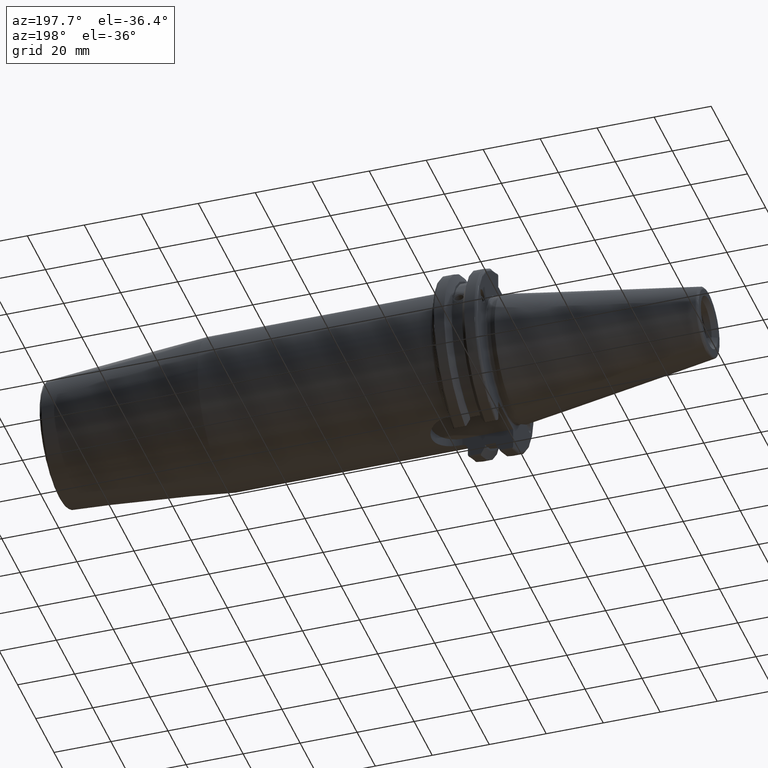
[diagram: clean part render]
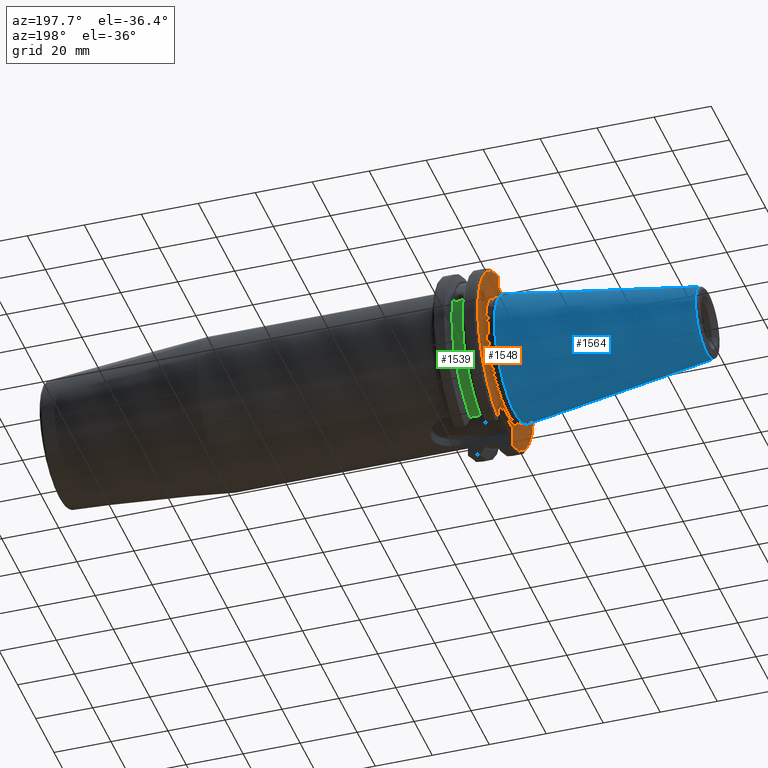
[diagram: same view with three faces highlighted in distinct colors, each labeled with its STEP entity id]
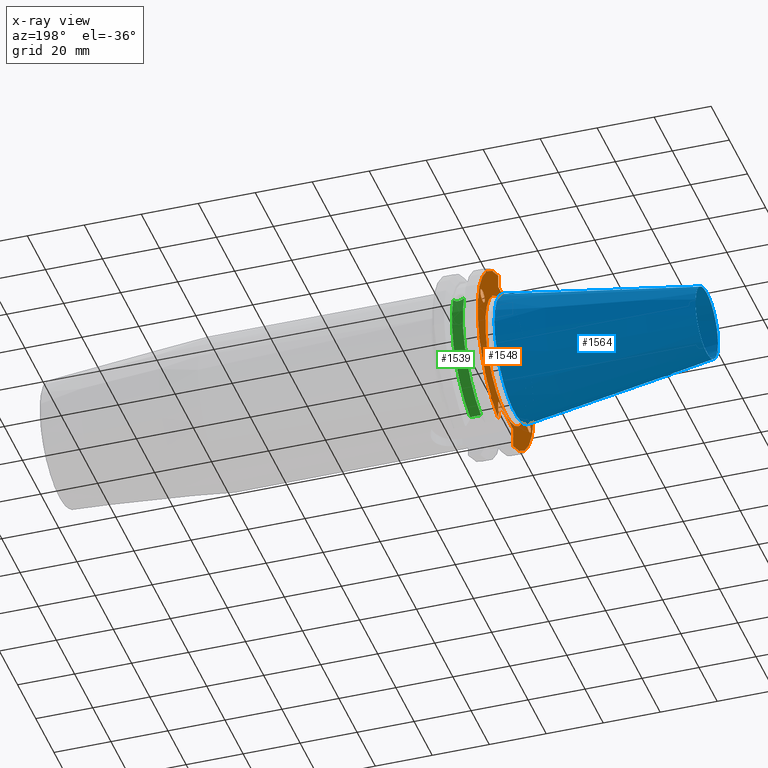
[diagram: x-ray of the same camera — body ghosted, the three highlighted faces saturated]
A machine part, auxiliary view with three faces highlighted in distinct colors.
The next image is the same camera in x-ray (body ghosted, the three faces saturated) — at least one of them is partly hidden behind the body in this view.
Their STEP definitions:

[orange] entity #1548 — the highlighted planar face has unit normal (-1, 0, 0).
#39=ELLIPSE('',#1674,2.44154917752292,2.00000000000001);
#48=ELLIPSE('',#1717,2.44154917752292,2.00000000000001);
#58=FACE_BOUND('',#263,.T.);
#59=FACE_BOUND('',#264,.T.);
#60=FACE_BOUND('',#265,.T.);
#77=PLANE('',#1727);
#166=FACE_OUTER_BOUND('',#262,.T.);
#262=EDGE_LOOP('',(#1238,#1239,#1240,#1241,#1242,#1243,#1244,#1245));
#263=EDGE_LOOP('',(#1246));
#264=EDGE_LOOP('',(#1247));
#265=EDGE_LOOP('',(#1248));
#358=CIRCLE('',#1725,22.3);
#360=CIRCLE('',#1728,30.75);
#361=CIRCLE('',#1729,30.75);
#432=LINE('',#2832,#518);
#433=LINE('',#2836,#519);
#434=LINE('',#2838,#520);
#435=LINE('',#2840,#521);
#436=LINE('',#2844,#522);
#437=LINE('',#2845,#523);
#518=VECTOR('',#2074,10.);
#519=VECTOR('',#2077,10.);
#520=VECTOR('',#2078,10.);
#521=VECTOR('',#2079,10.);
#522=VECTOR('',#2082,10.);
#523=VECTOR('',#2083,10.);
#662=VERTEX_POINT('',#2627);
#702=VERTEX_POINT('',#2810);
#707=VERTEX_POINT('',#2825);
#708=VERTEX_POINT('',#2830);
#709=VERTEX_POINT('',#2831);
#710=VERTEX_POINT('',#2833);
#711=VERTEX_POINT('',#2835);
#712=VERTEX_POINT('',#2837);
#713=VERTEX_POINT('',#2839);
#714=VERTEX_POINT('',#2841);
#715=VERTEX_POINT('',#2843);
#842=EDGE_CURVE('',#662,#662,#39,.T.);
#898=EDGE_CURVE('',#702,#702,#48,.T.);
#905=EDGE_CURVE('',#707,#707,#358,.T.);
#907=EDGE_CURVE('',#708,#709,#432,.T.);
#908=EDGE_CURVE('',#710,#709,#360,.T.);
#909=EDGE_CURVE('',#710,#711,#433,.T.);
#910=EDGE_CURVE('',#711,#712,#434,.T.);
#911=EDGE_CURVE('',#712,#713,#435,.T.);
#912=EDGE_CURVE('',#714,#713,#361,.T.);
#913=EDGE_CURVE('',#714,#715,#436,.T.);
#914=EDGE_CURVE('',#715,#708,#437,.T.);
#1238=ORIENTED_EDGE('',*,*,#907,.T.);
#1239=ORIENTED_EDGE('',*,*,#908,.F.);
#1240=ORIENTED_EDGE('',*,*,#909,.T.);
#1241=ORIENTED_EDGE('',*,*,#910,.T.);
#1242=ORIENTED_EDGE('',*,*,#911,.T.);
#1243=ORIENTED_EDGE('',*,*,#912,.F.);
#1244=ORIENTED_EDGE('',*,*,#913,.T.);
#1245=ORIENTED_EDGE('',*,*,#914,.T.);
#1246=ORIENTED_EDGE('',*,*,#842,.T.);
#1247=ORIENTED_EDGE('',*,*,#898,.T.);
#1248=ORIENTED_EDGE('',*,*,#905,.F.);
#1548=ADVANCED_FACE('',(#166,#58,#59,#60),#77,.T.);
#1674=AXIS2_PLACEMENT_3D('',#2629,#1947,#1948);
#1717=AXIS2_PLACEMENT_3D('',#2812,#2050,#2051);
#1725=AXIS2_PLACEMENT_3D('',#2827,#2068,#2069);
#1727=AXIS2_PLACEMENT_3D('',#2829,#2072,#2073);
#1728=AXIS2_PLACEMENT_3D('',#2834,#2075,#2076);
#1729=AXIS2_PLACEMENT_3D('',#2842,#2080,#2081);
#1947=DIRECTION('center_axis',(1.,0.,0.));
#1948=DIRECTION('ref_axis',(5.68400912649E-17,-0.939692620785909,-0.342020143325667));
#2050=DIRECTION('center_axis',(1.,0.,0.));
#2051=DIRECTION('ref_axis',(5.68400912649E-17,0.939692620785909,0.342020143325667));
#2068=DIRECTION('center_axis',(-1.,0.,0.));
#2069=DIRECTION('ref_axis',(0.,-1.,1.83697019872103E-16));
#2072=DIRECTION('center_axis',(-1.,0.,0.));
#2073=DIRECTION('ref_axis',(0.,0.,1.));
#2074=DIRECTION('',(0.,0.,1.));
#2075=DIRECTION('center_axis',(1.,0.,0.));
#2076=DIRECTION('ref_axis',(0.,1.,1.60812264967664E-16));
#2077=DIRECTION('',(0.,0.,1.));
#2078=DIRECTION('',(0.,-1.,0.));
#2079=DIRECTION('',(0.,0.,-1.));
#2080=DIRECTION('center_axis',(1.,0.,0.));
#2081=DIRECTION('ref_axis',(0.,-1.,1.60812264967664E-16));
#2082=DIRECTION('',(0.,0.,-1.));
#2083=DIRECTION('',(0.,1.,0.));
#2627=CARTESIAN_POINT('',(3.175,-23.0773950158153,-8.39948487016));
#2629=CARTESIAN_POINT('Origin',(3.175,-25.3717007612195,-9.23454386979305));
#2810=CARTESIAN_POINT('',(3.175,23.0773950158153,8.39948487016));
#2812=CARTESIAN_POINT('Origin',(3.175,25.3717007612195,9.23454386979306));
#2825=CARTESIAN_POINT('',(3.175,-2.7309623620986E-15,22.3));
#2827=CARTESIAN_POINT('Origin',(3.175,0.,0.));
#2829=CARTESIAN_POINT('Origin',(3.175,31.75,0.));
#2830=CARTESIAN_POINT('',(3.175,8.18999999999999,25.));
#2831=CARTESIAN_POINT('',(3.175,8.19,29.6392712461019));
#2832=CARTESIAN_POINT('',(3.175,8.19,12.5));
#2833=CARTESIAN_POINT('',(3.175,8.18999999999999,-29.6392712461019));
#2834=CARTESIAN_POINT('Origin',(3.175,0.,0.));
#2835=CARTESIAN_POINT('',(3.175,8.19000000000001,-22.6));
#2836=CARTESIAN_POINT('',(3.175,8.19000000000001,-11.3));
#2837=CARTESIAN_POINT('',(3.175,-8.19,-22.6));
#2838=CARTESIAN_POINT('',(3.175,15.875,-22.6));
#2839=CARTESIAN_POINT('',(3.175,-8.19,-29.6392712461019));
#2840=CARTESIAN_POINT('',(3.175,-8.19,-11.3));
#2841=CARTESIAN_POINT('',(3.175,-8.18999999999999,29.6392712461019));
#2842=CARTESIAN_POINT('Origin',(3.175,0.,0.));
#2843=CARTESIAN_POINT('',(3.175,-8.19000000000001,25.));
#2844=CARTESIAN_POINT('',(3.175,-8.19000000000001,12.5));
#2845=CARTESIAN_POINT('',(3.175,15.875,25.));

[blue] entity #1564 — the highlighted conical surface has half-angle 8.297 deg.
#105=CONICAL_SURFACE('',#1756,17.2484375,0.144812498238939);
#182=FACE_OUTER_BOUND('',#282,.T.);
#282=EDGE_LOOP('',(#1352,#1353,#1354,#1355,#1356));
#368=CIRCLE('',#1750,12.3966635780937);
#369=CIRCLE('',#1751,12.3966635780937);
#373=CIRCLE('',#1757,22.225);
#455=LINE('',#3052,#541);
#541=VECTOR('',#2157,17.2484375);
#742=VERTEX_POINT('',#3039);
#743=VERTEX_POINT('',#3040);
#746=VERTEX_POINT('',#3050);
#960=EDGE_CURVE('',#742,#743,#368,.T.);
#961=EDGE_CURVE('',#743,#742,#369,.T.);
#965=EDGE_CURVE('',#746,#746,#373,.T.);
#966=EDGE_CURVE('',#746,#743,#455,.T.);
#1352=ORIENTED_EDGE('',*,*,#965,.F.);
#1353=ORIENTED_EDGE('',*,*,#966,.T.);
#1354=ORIENTED_EDGE('',*,*,#960,.F.);
#1355=ORIENTED_EDGE('',*,*,#961,.F.);
#1356=ORIENTED_EDGE('',*,*,#966,.F.);
#1564=ADVANCED_FACE('',(#182),#105,.T.);
#1750=AXIS2_PLACEMENT_3D('',#3041,#2141,#2142);
#1751=AXIS2_PLACEMENT_3D('',#3042,#2143,#2144);
#1756=AXIS2_PLACEMENT_3D('',#3049,#2153,#2154);
#1757=AXIS2_PLACEMENT_3D('',#3051,#2155,#2156);
#2141=DIRECTION('center_axis',(-1.,0.,0.));
#2142=DIRECTION('ref_axis',(0.,-1.,3.06161699786838E-17));
#2143=DIRECTION('center_axis',(-1.,0.,0.));
#2144=DIRECTION('ref_axis',(0.,-1.,3.06161699786838E-17));
#2153=DIRECTION('center_axis',(1.,0.,0.));
#2154=DIRECTION('ref_axis',(0.,1.,0.));
#2155=DIRECTION('center_axis',(1.,0.,0.));
#2156=DIRECTION('ref_axis',(0.,0.,-1.));
#2157=DIRECTION('',(-0.989532981063282,0.144306893071729,1.76724974695192E-17));
#3039=CARTESIAN_POINT('',(-67.3943068930717,-1.5181534371019E-15,12.3966635780937));
#3040=CARTESIAN_POINT('',(-67.3943068930718,-12.3966635780937,-1.5181534371019E-15));
#3041=CARTESIAN_POINT('Origin',(-67.3943068930717,0.,-1.89769179637738E-15));
#3042=CARTESIAN_POINT('Origin',(-67.3943068930717,0.,-1.89769179637738E-15));
#3049=CARTESIAN_POINT('Origin',(-34.125,0.,0.));
#3050=CARTESIAN_POINT('',(0.,-22.225,-2.72177751110499E-15));
#3051=CARTESIAN_POINT('Origin',(0.,0.,0.));
#3052=CARTESIAN_POINT('',(-34.125,-17.2484375,-2.11232437746682E-15));

[green] entity #1539 — the highlighted cylindrical surface (partial cylindrical patch) has radius 28.15 mm, axis along (1, 0, 0).
#157=FACE_OUTER_BOUND('',#252,.T.);
#252=EDGE_LOOP('',(#1202,#1203,#1204,#1205));
#349=CIRCLE('',#1706,28.15);
#350=CIRCLE('',#1708,28.15);
#425=LINE('',#2794,#511);
#511=VECTOR('',#2029,10.);
#579=B_SPLINE_CURVE_WITH_KNOTS('',3,(#2705,#2706,#2707,#2708,#2709,#2710,
#2711,#2712,#2713,#2714,#2715,#2716,#2717,#2718),.UNSPECIFIED.,.F.,.F.,
(4,2,2,2,2,2,4),(0.401639126382403,0.474814416953736,0.553950208498303,
0.63308600004287,0.712221791587437,0.791357583132004,0.864532873703335),
 .UNSPECIFIED.);
#683=VERTEX_POINT('',#2702);
#684=VERTEX_POINT('',#2704);
#696=VERTEX_POINT('',#2788);
#697=VERTEX_POINT('',#2792);
#873=EDGE_CURVE('',#684,#683,#579,.T.);
#887=EDGE_CURVE('',#696,#684,#349,.T.);
#889=EDGE_CURVE('',#697,#683,#350,.T.);
#890=EDGE_CURVE('',#697,#696,#425,.T.);
#1202=ORIENTED_EDGE('',*,*,#873,.T.);
#1203=ORIENTED_EDGE('',*,*,#889,.F.);
#1204=ORIENTED_EDGE('',*,*,#890,.T.);
#1205=ORIENTED_EDGE('',*,*,#887,.T.);
#1489=CYLINDRICAL_SURFACE('',#1707,28.15);
#1539=ADVANCED_FACE('',(#157),#1489,.T.);
#1706=AXIS2_PLACEMENT_3D('',#2789,#2022,#2023);
#1707=AXIS2_PLACEMENT_3D('',#2791,#2025,#2026);
#1708=AXIS2_PLACEMENT_3D('',#2793,#2027,#2028);
#2022=DIRECTION('center_axis',(1.,0.,0.));
#2023=DIRECTION('ref_axis',(0.,0.,-1.));
#2025=DIRECTION('center_axis',(1.,0.,0.));
#2026=DIRECTION('ref_axis',(0.,1.,0.));
#2027=DIRECTION('center_axis',(1.,0.,0.));
#2028=DIRECTION('ref_axis',(0.,0.,-1.));
#2029=DIRECTION('',(-1.,0.,0.));
#2702=CARTESIAN_POINT('',(13.0491,26.734714844398,8.8134852464121));
#2704=CARTESIAN_POINT('',(9.2191,26.734714844398,8.81348524641212));
#2705=CARTESIAN_POINT('Ctrl Pts',(9.2191,26.734714844398,8.81348524641212));
#2706=CARTESIAN_POINT('Ctrl Pts',(9.32533057097183,26.8086519721597,8.58920529678291));
#2707=CARTESIAN_POINT('Ctrl Pts',(9.47682013770509,26.8729987454904,8.3841652999737));
#2708=CARTESIAN_POINT('Ctrl Pts',(9.83557062657411,26.9778908791383,8.04056861831091));
#2709=CARTESIAN_POINT('Ctrl Pts',(10.0716450112988,27.0233016799732,7.88512567185903));
#2710=CARTESIAN_POINT('Ctrl Pts',(10.5890125426388,27.0826966800569,7.6786444840004));
#2711=CARTESIAN_POINT('Ctrl Pts',(10.8703140281848,27.0968804077294,7.62768458768513));
#2712=CARTESIAN_POINT('Ctrl Pts',(11.3978859718152,27.0968804077294,7.62768458768513));
#2713=CARTESIAN_POINT('Ctrl Pts',(11.6791874573612,27.0826966800569,7.6786444840004));
#2714=CARTESIAN_POINT('Ctrl Pts',(12.1965549887012,27.0233016799732,7.88512567185903));
#2715=CARTESIAN_POINT('Ctrl Pts',(12.4326293734259,26.9778908791383,8.04056861831092));
#2716=CARTESIAN_POINT('Ctrl Pts',(12.7913798622949,26.8729987454904,8.38416529997369));
#2717=CARTESIAN_POINT('Ctrl Pts',(12.9428694290282,26.8086519721597,8.58920529678291));
#2718=CARTESIAN_POINT('Ctrl Pts',(13.0491,26.734714844398,8.81348524641211));
#2788=CARTESIAN_POINT('',(9.2191,8.19,-26.932255754021));
#2789=CARTESIAN_POINT('Origin',(9.2191,0.,0.));
#2791=CARTESIAN_POINT('Origin',(11.1341,0.,0.));
#2792=CARTESIAN_POINT('',(13.0491,8.19,-26.932255754021));
#2793=CARTESIAN_POINT('Origin',(13.0491,0.,0.));
#2794=CARTESIAN_POINT('',(11.1341,8.19,-26.932255754021));